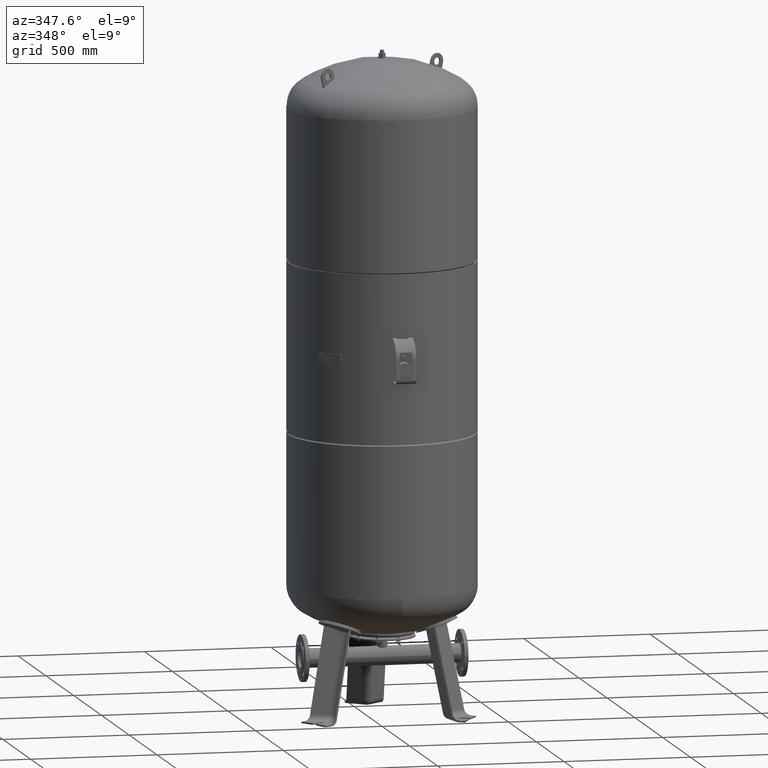
[diagram: clean part render]
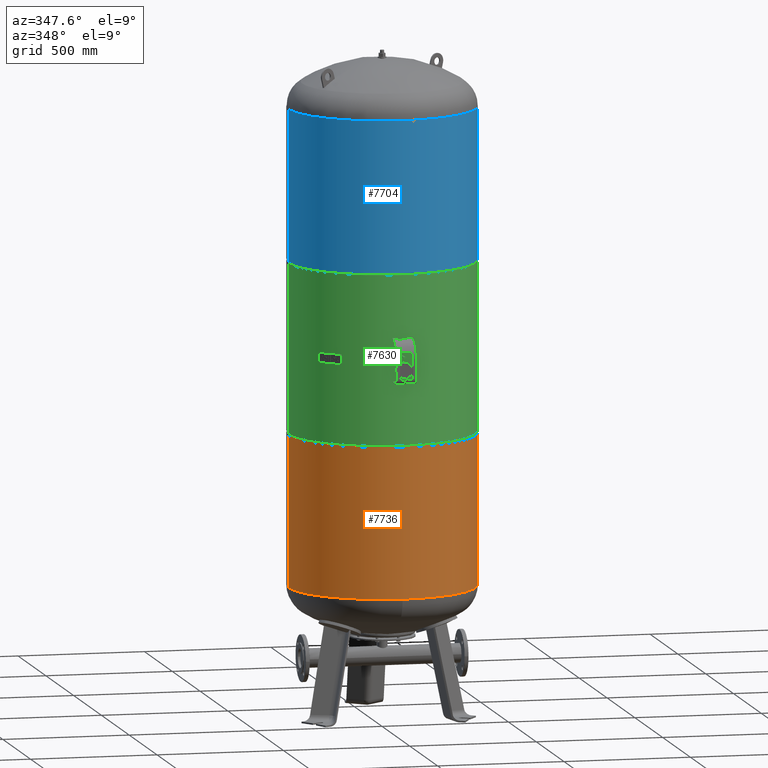
[diagram: same view with three faces highlighted in distinct colors, each labeled with its STEP entity id]
A machine part, auxiliary view with three faces highlighted in distinct colors.
Their STEP definitions:

[orange] entity #7736 — the highlighted cylindrical surface (partial cylindrical patch) has radius 370 mm, axis along (0, 0, 1).
#7638=CARTESIAN_POINT('',(370.000000000000110,0.0,1109.333333333333000));
#7639=VERTEX_POINT('',#7638);
#7655=CARTESIAN_POINT('',(-370.0,-4.531044E-014,1109.333333333333000));
#7656=VERTEX_POINT('',#7655);
#7663=CARTESIAN_POINT('',(-5.646011E-015,0.0,1109.333333333333000));
#7664=DIRECTION('',(0.0,0.0,1.0));
#7665=DIRECTION('',(1.0,0.0,0.0));
#7666=AXIS2_PLACEMENT_3D('',#7663,#7664,#7665);
#7667=CIRCLE('',#7666,370.000000000000110);
#7668=EDGE_CURVE('',#7656,#7639,#7667,.T.);
#7705=CARTESIAN_POINT('',(-1.116699E-014,0.0,778.166666666666520));
#7706=DIRECTION('',(1.667129E-017,0.0,1.0));
#7707=DIRECTION('',(1.0,0.0,0.0));
#7708=AXIS2_PLACEMENT_3D('',#7705,#7706,#7707);
#7709=CYLINDRICAL_SURFACE('',#7708,370.0);
#7710=CARTESIAN_POINT('',(370.0,0.0,512.0));
#7711=VERTEX_POINT('',#7710);
#7712=CARTESIAN_POINT('',(370.000000000000110,0.0,1109.333333333333000));
#7713=DIRECTION('',(0.0,0.0,-1.0));
#7714=VECTOR('',#7713,597.333333333333030);
#7715=LINE('',#7712,#7714);
#7716=EDGE_CURVE('',#7639,#7711,#7715,.T.);
#7717=ORIENTED_EDGE('',*,*,#7716,.F.);
#7718=ORIENTED_EDGE('',*,*,#7668,.F.);
#7719=CARTESIAN_POINT('',(-370.0,4.531044E-014,512.0));
#7720=VERTEX_POINT('',#7719);
#7721=CARTESIAN_POINT('',(-370.0,-4.531044E-014,1109.333333333333000));
#7722=DIRECTION('',(0.0,0.0,-1.0));
#7723=VECTOR('',#7722,597.333333333333030);
#7724=LINE('',#7721,#7723);
#7725=EDGE_CURVE('',#7656,#7720,#7724,.T.);
#7726=ORIENTED_EDGE('',*,*,#7725,.T.);
#7727=CARTESIAN_POINT('',(-1.560433E-014,0.0,512.0));
#7728=DIRECTION('',(0.0,0.0,-1.0));
#7729=DIRECTION('',(1.0,0.0,0.0));
#7730=AXIS2_PLACEMENT_3D('',#7727,#7728,#7729);
#7731=CIRCLE('',#7730,370.0);
#7732=EDGE_CURVE('',#7711,#7720,#7731,.T.);
#7733=ORIENTED_EDGE('',*,*,#7732,.F.);
#7734=EDGE_LOOP('',(#7717,#7718,#7726,#7733));
#7735=FACE_OUTER_BOUND('',#7734,.T.);
#7736=ADVANCED_FACE('',(#7735),#7709,.T.);

[blue] entity #7704 — the highlighted cylindrical surface (partial cylindrical patch) has radius 370 mm, axis along (0, 0, 1).
#7552=CARTESIAN_POINT('',(369.999999999999490,0.0,1786.666666666666700));
#7553=VERTEX_POINT('',#7552);
#7562=CARTESIAN_POINT('',(-369.999999999999720,-4.531044E-014,1786.666666666666700));
#7563=VERTEX_POINT('',#7562);
#7564=CARTESIAN_POINT('',(5.646011E-015,0.0,1786.666666666666700));
#7565=DIRECTION('',(0.0,0.0,1.0));
#7566=DIRECTION('',(1.0,0.0,0.0));
#7567=AXIS2_PLACEMENT_3D('',#7564,#7565,#7566);
#7568=CIRCLE('',#7567,369.999999999999490);
#7569=EDGE_CURVE('',#7563,#7553,#7568,.T.);
#7673=CARTESIAN_POINT('',(1.116699E-014,0.0,2117.833333333333500));
#7674=DIRECTION('',(1.667129E-017,0.0,1.0));
#7675=DIRECTION('',(1.0,0.0,0.0));
#7676=AXIS2_PLACEMENT_3D('',#7673,#7674,#7675);
#7677=CYLINDRICAL_SURFACE('',#7676,369.999999999999720);
#7678=CARTESIAN_POINT('',(369.999999999999720,0.0,2384.0));
#7679=VERTEX_POINT('',#7678);
#7680=CARTESIAN_POINT('',(369.999999999999720,0.0,2384.0));
#7681=DIRECTION('',(0.0,0.0,-1.0));
#7682=VECTOR('',#7681,597.333333333333260);
#7683=LINE('',#7680,#7682);
#7684=EDGE_CURVE('',#7679,#7553,#7683,.T.);
#7685=ORIENTED_EDGE('',*,*,#7684,.F.);
#7686=CARTESIAN_POINT('',(-369.999999999999720,-4.531044E-014,2384.0));
#7687=VERTEX_POINT('',#7686);
#7688=CARTESIAN_POINT('',(1.560433E-014,0.0,2384.0));
#7689=DIRECTION('',(0.0,0.0,1.0));
#7690=DIRECTION('',(1.0,0.0,0.0));
#7691=AXIS2_PLACEMENT_3D('',#7688,#7689,#7690);
#7692=CIRCLE('',#7691,369.999999999999720);
#7693=EDGE_CURVE('',#7687,#7679,#7692,.T.);
#7694=ORIENTED_EDGE('',*,*,#7693,.F.);
#7695=CARTESIAN_POINT('',(-369.999999999999720,-4.531044E-014,2384.0));
#7696=DIRECTION('',(0.0,0.0,-1.0));
#7697=VECTOR('',#7696,597.333333333333260);
#7698=LINE('',#7695,#7697);
#7699=EDGE_CURVE('',#7687,#7563,#7698,.T.);
#7700=ORIENTED_EDGE('',*,*,#7699,.T.);
#7701=ORIENTED_EDGE('',*,*,#7569,.T.);
#7702=EDGE_LOOP('',(#7685,#7694,#7700,#7701));
#7703=FACE_OUTER_BOUND('',#7702,.T.);
#7704=ADVANCED_FACE('',(#7703),#7677,.T.);

[green] entity #7630 — the highlighted cylindrical surface (partial cylindrical patch) has radius 370 mm, axis along (0, 0, 1).
#7589=CARTESIAN_POINT('',(0.0,0.0,1448.0));
#7590=DIRECTION('',(1.667129E-017,0.0,1.0));
#7591=DIRECTION('',(1.0,0.0,0.0));
#7592=AXIS2_PLACEMENT_3D('',#7589,#7590,#7591);
#7593=CYLINDRICAL_SURFACE('',#7592,369.999999999999430);
#7594=CARTESIAN_POINT('',(369.999999999999490,0.0,1781.666666666666700));
#7595=VERTEX_POINT('',#7594);
#7596=CARTESIAN_POINT('',(369.999999999999370,0.0,1114.333333333333000));
#7597=VERTEX_POINT('',#7596);
#7598=CARTESIAN_POINT('',(369.999999999999490,0.0,1781.666666666666700));
#7599=DIRECTION('',(0.0,0.0,-1.0));
#7600=VECTOR('',#7599,667.333333333333710);
#7601=LINE('',#7598,#7600);
#7602=EDGE_CURVE('',#7595,#7597,#7601,.T.);
#7603=ORIENTED_EDGE('',*,*,#7602,.F.);
#7604=CARTESIAN_POINT('',(-369.999999999999430,-4.531044E-014,1781.666666666666700));
#7605=VERTEX_POINT('',#7604);
#7606=CARTESIAN_POINT('',(5.562655E-015,0.0,1781.666666666666700));
#7607=DIRECTION('',(0.0,0.0,1.0));
#7608=DIRECTION('',(1.0,0.0,0.0));
#7609=AXIS2_PLACEMENT_3D('',#7606,#7607,#7608);
#7610=CIRCLE('',#7609,369.999999999999490);
#7611=EDGE_CURVE('',#7605,#7595,#7610,.T.);
#7612=ORIENTED_EDGE('',*,*,#7611,.F.);
#7613=CARTESIAN_POINT('',(-369.999999999999430,-4.531044E-014,1114.333333333333000));
#7614=VERTEX_POINT('',#7613);
#7615=CARTESIAN_POINT('',(-369.999999999999430,-4.531044E-014,1781.666666666666700));
#7616=DIRECTION('',(0.0,0.0,-1.0));
#7617=VECTOR('',#7616,667.333333333333710);
#7618=LINE('',#7615,#7617);
#7619=EDGE_CURVE('',#7605,#7614,#7618,.T.);
#7620=ORIENTED_EDGE('',*,*,#7619,.T.);
#7621=CARTESIAN_POINT('',(-5.562655E-015,0.0,1114.333333333333000));
#7622=DIRECTION('',(0.0,0.0,1.0));
#7623=DIRECTION('',(1.0,0.0,0.0));
#7624=AXIS2_PLACEMENT_3D('',#7621,#7622,#7623);
#7625=CIRCLE('',#7624,369.999999999999370);
#7626=EDGE_CURVE('',#7614,#7597,#7625,.T.);
#7627=ORIENTED_EDGE('',*,*,#7626,.T.);
#7628=EDGE_LOOP('',(#7603,#7612,#7620,#7627));
#7629=FACE_OUTER_BOUND('',#7628,.T.);
#7630=ADVANCED_FACE('',(#7629),#7593,.T.);